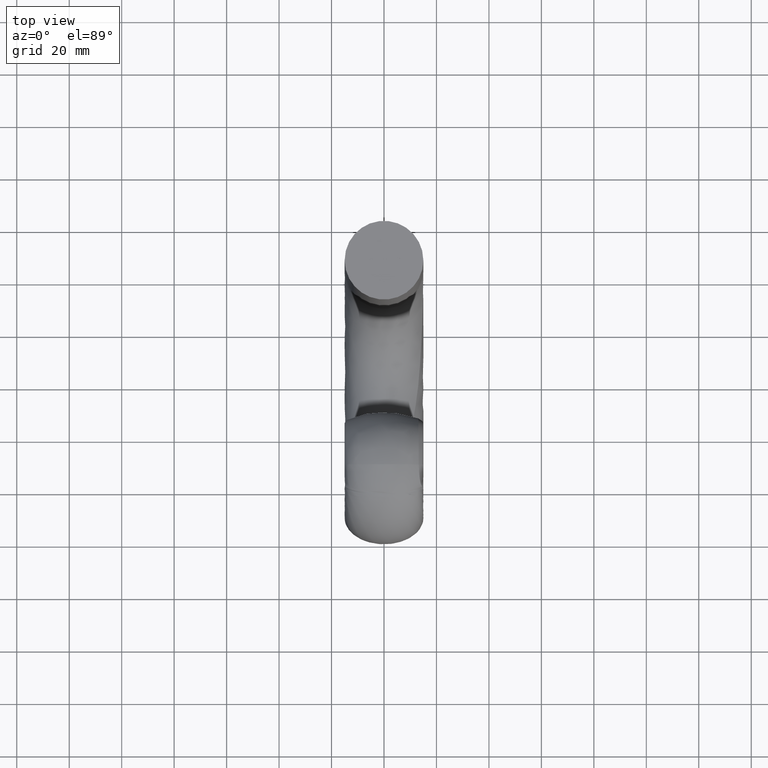
[diagram: clean part render]
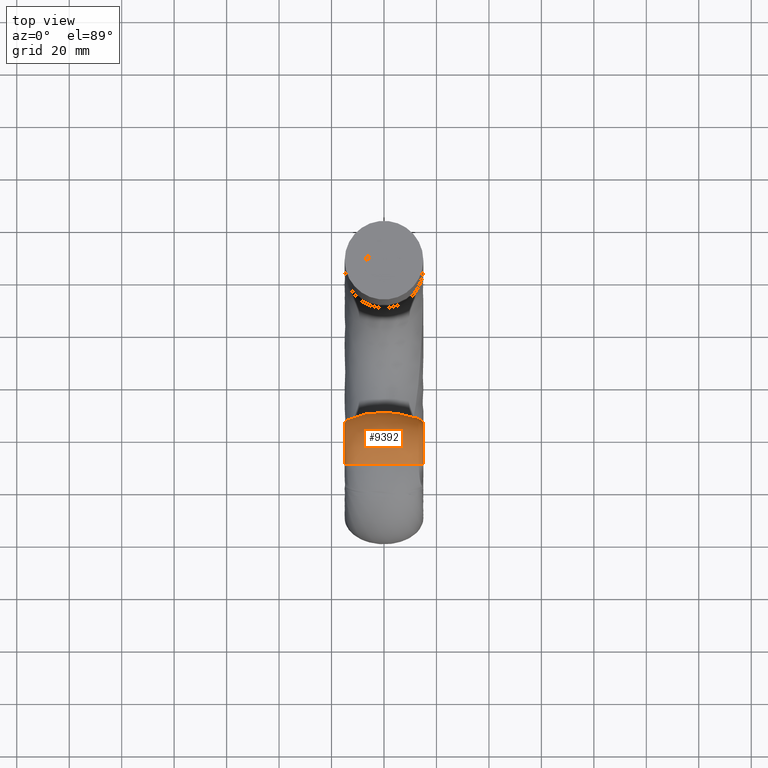
[diagram: same view with one face highlighted and labeled with its STEP entity id]
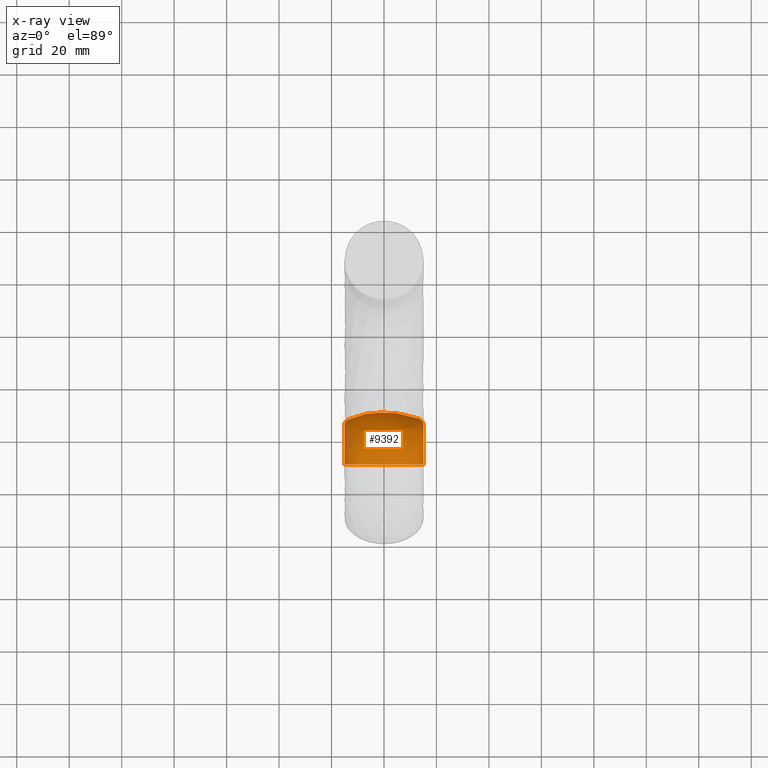
[diagram: x-ray of the same camera — body ghosted, the highlighted face saturated]
A machine part, top view. The second image highlights one B-rep face of the part: STEP entity #9392.
The next image is the same camera in x-ray: the body ghosted, the highlighted face saturated — about 0% of this face is hidden behind the body in this view.
In plain terms, the highlighted face is a freeform B-spline surface patch.
Its self-contained STEP definition (entity closure, byte-faithful):
#10 = CARTESIAN_POINT ( 'NONE',  ( -10.20475495683882300, 48.61186163591647600, 4.715058631657980100 ) ) ;
#29 = CARTESIAN_POINT ( 'NONE',  ( 0.6301788391058069600, 44.91452162712401700, -1.920545361617025800 ) ) ;
#60 = CARTESIAN_POINT ( 'NONE',  ( -14.87437876325838800, 47.61276404176801000, 6.947146500175112000 ) ) ;
#76 = CARTESIAN_POINT ( 'NONE',  ( 0.5484086856474481600, 37.81622348324568600, 4.620763202125711900 ) ) ;
#99 = CARTESIAN_POINT ( 'NONE',  ( -10.02426949254982900, 33.49164225234307700, 28.82672913196165600 ) ) ;
#117 = CARTESIAN_POINT ( 'NONE',  ( 1.571332605376105000, 49.20377971486300300, 15.88885075193090300 ) ) ;
#144 = CARTESIAN_POINT ( 'NONE',  ( -10.25336206421495300, 43.65897647796154500, -2.031322771746487500 ) ) ;
#160 = CARTESIAN_POINT ( 'NONE',  ( 4.092090562060056100, 30.00000000000000000, 29.72518760343814000 ) ) ;
#184 = CARTESIAN_POINT ( 'NONE',  ( -10.31187520880470700, 37.69147332073894300, 3.833664387435294700 ) ) ;
#201 = CARTESIAN_POINT ( 'NONE',  ( 1.460864932896268800, 46.28525903466994200, -0.7848184860967504200 ) ) ;
#229 = CARTESIAN_POINT ( 'NONE',  ( -2.253447770903444600, 40.21337682134622300, -2.195633180431369800 ) ) ;
#245 = CARTESIAN_POINT ( 'NONE',  ( 2.569683391173860800, 37.83449588973820000, 4.611663517668591600 ) ) ;
#267 = CARTESIAN_POINT ( 'NONE',  ( -2.222985271447723400, 44.90060540927837700, -1.897213870499181400 ) ) ;
#280 = CARTESIAN_POINT ( 'NONE',  ( 2.698957818208473000, 49.07488817201944200, 4.556241795514429400 ) ) ;
#308 = CARTESIAN_POINT ( 'NONE',  ( -2.101995123281608100, 49.18360270625536400, 15.88266140990148000 ) ) ;
#323 = CARTESIAN_POINT ( 'NONE',  ( 15.14559541003366600, 46.49934550506608100, 15.07505424886092600 ) ) ;
#354 = CARTESIAN_POINT ( 'NONE',  ( -3.413109108577406600, 42.59275050193510700, -2.591325096236855700 ) ) ;
#362 = FACE_OUTER_BOUND ( 'NONE', #909, .T. ) ;
#373 = CARTESIAN_POINT ( 'NONE',  ( 10.56545515286601700, 37.97759773731758100, 0.4591921068384851000 ) ) ;
#402 = CARTESIAN_POINT ( 'NONE',  ( -2.303950241531829600, 37.83048133527662300, 4.613657964165435400 ) ) ;
#417 = CARTESIAN_POINT ( 'NONE',  ( 10.59737523544110100, 42.56990266401594900, -2.208736045459792000 ) ) ;
#442 = CARTESIAN_POINT ( 'NONE',  ( 0.03949350219729252900, 37.18253838071664300, 28.77845359242518000 ) ) ;
#456 = CARTESIAN_POINT ( 'NONE',  ( 10.76784753307926200, 42.66509403043251300, 24.20444206620306500 ) ) ;
#488 = CARTESIAN_POINT ( 'NONE',  ( -0.2591119291196993800, 37.29852599562904900, 1.495299882231584600 ) ) ;
#504 = CARTESIAN_POINT ( 'NONE',  ( 15.21219394346221100, 30.00000000000000000, 25.55994367122105300 ) ) ;
#529 = CARTESIAN_POINT ( 'NONE',  ( -0.9557794600715453500, 49.67446382191607800, 6.523022335543671200 ) ) ;
#548 = CARTESIAN_POINT ( 'NONE',  ( 14.92234691596990700, 39.89282263086229100, 3.128228697229158000 ) ) ;
#569 = CARTESIAN_POINT ( 'NONE',  ( -0.7350354216119844300, 30.00000000000000000, 29.99959115891636000 ) ) ;
#584 = CARTESIAN_POINT ( 'NONE',  ( 7.983142848990078200, 41.69695819953913900, 9.474086058327406700 ) ) ;
#607 = CARTESIAN_POINT ( 'NONE',  ( 0.2939947657860801400, 50.06074846182422500, 8.923584158630305300 ) ) ;
#621 = CARTESIAN_POINT ( 'NONE',  ( 14.86733544571673900, 42.96647745176492400, 3.340674559040648400 ) ) ;
#667 = CARTESIAN_POINT ( 'NONE',  ( 7.821707080131844200, 32.25842792823400600, 16.02504688869039700 ) ) ;
#694 = CARTESIAN_POINT ( 'NONE',  ( 0.1319451898328895000, 38.00004959377621800, 4.979920021220603800 ) ) ;
#711 = CARTESIAN_POINT ( 'NONE',  ( 14.92659714024734200, 40.00060253431691800, 3.764205780821033200 ) ) ;
#735 = CARTESIAN_POINT ( 'NONE',  ( 0.1855188649795549100, 40.20351540438738200, -2.217627991391552600 ) ) ;
#746 = CARTESIAN_POINT ( 'NONE',  ( -15.25525509941292900, 31.64354577525931600, 19.09105462956653600 ) ) ;
#775 = CARTESIAN_POINT ( 'NONE',  ( 0.2465857267815631500, 47.90270251934892800, 1.785411504451394100 ) ) ;
#791 = CARTESIAN_POINT ( 'NONE',  ( 8.061579285278286400, 41.92343484369903500, 3.105785888294114700 ) ) ;
#833 = CARTESIAN_POINT ( 'NONE',  ( -15.26732151550499800, 30.00000000000000000, 18.61264280544154600 ) ) ;
#880 = CARTESIAN_POINT ( 'NONE',  ( -15.13406806285026100, 43.36071140242940200, 4.287761067451305600 ) ) ;
#897 = CARTESIAN_POINT ( 'NONE',  ( 0.2369815458401221000, 47.10871376364363500, 0.4955899096737880800 ) ) ;
#909 = EDGE_LOOP ( 'NONE', ( #11587 ) ) ;
#930 = CARTESIAN_POINT ( 'NONE',  ( -8.534342098070252900, 42.16303461278578600, 6.049352232490503100 ) ) ;
#946 = CARTESIAN_POINT ( 'NONE',  ( 0.5687165354810903600, 37.29958836904587800, 1.495478354353123400 ) ) ;
#977 = CARTESIAN_POINT ( 'NONE',  ( -10.16209355091190300, 49.31730572808819300, 12.28415590582793900 ) ) ;
#995 = CARTESIAN_POINT ( 'NONE',  ( 0.1700654957320078000, 38.28582767938588900, -0.7077813347016318500 ) ) ;
#1020 = CARTESIAN_POINT ( 'NONE',  ( 15.00000000000000000, 30.00000000000000000, 22.50000000000000000 ) ) ;
#1022 = CARTESIAN_POINT ( 'NONE',  ( -14.78220159219371000, 32.97194478463569600, 26.08795853039088900 ) ) ;
#1038 = CARTESIAN_POINT ( 'NONE',  ( 0.3383827632599184000, 49.22297965337558900, 15.89459275940328600 ) ) ;
#1062 = CARTESIAN_POINT ( 'NONE',  ( -10.06380425071840400, 39.98678284184055100, 26.41155698001465500 ) ) ;
#1076 = CARTESIAN_POINT ( 'NONE',  ( 1.731639280285626600, 30.00000000000000000, 29.95850475426512500 ) ) ;
#1102 = CARTESIAN_POINT ( 'NONE',  ( -14.94116164639853700, 38.70462978605527800, 4.551754309682070100 ) ) ;
#1119 = CARTESIAN_POINT ( 'NONE',  ( 4.069680444368843900, 33.62742840686787100, 29.54634708975118000 ) ) ;
#1146 = CARTESIAN_POINT ( 'NONE',  ( -10.01084548729263600, 31.15505121504428800, 28.92297089621201400 ) ) ;
#1162 = CARTESIAN_POINT ( 'NONE',  ( 2.612428895079968800, 39.17230057221148300, -1.564610658032340200 ) ) ;
#1186 = CARTESIAN_POINT ( 'NONE',  ( -3.121309092824350100, 30.00000000000000000, 29.84533828925969000 ) ) ;
#1201 = CARTESIAN_POINT ( 'NONE',  ( 1.617083913432538500, 45.85479283991421800, 22.32531366360774100 ) ) ;
#1223 = CARTESIAN_POINT ( 'NONE',  ( -2.276203024440523100, 37.68811430143613000, 0.3296453138036072300 ) ) ;
#1241 = CARTESIAN_POINT ( 'NONE',  ( 2.928959469766031700, 30.00000000000000000, 29.86484269600380500 ) ) ;
#1266 = CARTESIAN_POINT ( 'NONE',  ( -2.010844505691113900, 40.43069859133959200, 27.13552629687998100 ) ) ;
#1284 = CARTESIAN_POINT ( 'NONE',  ( 1.426660791040181000, 41.36851737404239800, -2.572120459135390600 ) ) ;
#1314 = CARTESIAN_POINT ( 'NONE',  ( -10.27288972611845500, 40.35208993279820800, -1.886662303279510000 ) ) ;
#1331 = CARTESIAN_POINT ( 'NONE',  ( 3.936660282286647200, 49.06585548341458700, 15.84739993705147200 ) ) ;
#1356 = CARTESIAN_POINT ( 'NONE',  ( -10.28599877770684800, 38.54509906259418300, -0.5105173808271728000 ) ) ;
#1372 = CARTESIAN_POINT ( 'NONE',  ( 3.857786589916123400, 48.52495915722813900, 3.281065632119788000 ) ) ;
#1399 = CARTESIAN_POINT ( 'NONE',  ( -0.1769030832076855800, 47.10986508557057600, 0.4947983436508298600 ) ) ;
#1417 = CARTESIAN_POINT ( 'NONE',  ( 10.59094579465375800, 41.44714387547553300, -2.161761891801161200 ) ) ;
#1451 = CARTESIAN_POINT ( 'NONE',  ( -0.2438441744031930600, 38.28529314779083100, -0.7081848646436352800 ) ) ;
#1470 = CARTESIAN_POINT ( 'NONE',  ( 10.55259150303100500, 37.53511255016438500, 2.697796992005752100 ) ) ;
#1499 = CARTESIAN_POINT ( 'NONE',  ( -0.9775864360697442700, 48.62687867984620000, 3.236685837942827200 ) ) ;
#1514 = CARTESIAN_POINT ( 'NONE',  ( 10.84329188194425300, 30.00000000000000000, 28.62329784408432300 ) ) ;
#1539 = CARTESIAN_POINT ( 'NONE',  ( -0.05244310835518905400, 47.84688458611536500, 19.27546928377310600 ) ) ;
#1554 = CARTESIAN_POINT ( 'NONE',  ( 15.07746441838664700, 39.95828910072580000, -0.5738705923053772900 ) ) ;
#1582 = CARTESIAN_POINT ( 'NONE',  ( -1.102324201736263300, 38.00199378065581600, 4.978738560021740900 ) ) ;
#1599 = CARTESIAN_POINT ( 'NONE',  ( 7.998643915557332600, 41.99073142169224600, 8.104201164733728600 ) ) ;
#1642 = CARTESIAN_POINT ( 'NONE',  ( 15.05767769560800300, 38.72718133959014600, 4.538049976135135400 ) ) ;
#1681 = CARTESIAN_POINT ( 'NONE',  ( 15.08076587956959700, 40.76419235593477500, -0.9695151563898669600 ) ) ;
#1704 = CARTESIAN_POINT ( 'NONE',  ( 0.4994208442570384200, 30.00000000000000000, 29.99584182764553100 ) ) ;
#1718 = CARTESIAN_POINT ( 'NONE',  ( 15.06755203648122800, 38.36033592139042300, 1.678223454956944100 ) ) ;
#1748 = CARTESIAN_POINT ( 'NONE',  ( 0.4532409012672452000, 37.18048985580397000, 28.77319119350710300 ) ) ;
#1763 = CARTESIAN_POINT ( 'NONE',  ( -8.766005348132033200, 30.33906905619258500, 15.37126203670682000 ) ) ;
#1807 = CARTESIAN_POINT ( 'NONE',  ( -15.12383440712267200, 42.43917802002586400, 2.098503034385833300 ) ) ;
#1847 = CARTESIAN_POINT ( 'NONE',  ( 8.040711035116057600, 41.80122870538377800, 4.141001827694960700 ) ) ;
#1894 = CARTESIAN_POINT ( 'NONE',  ( -15.26332988991419600, 30.54369245400792500, 18.77090362336362600 ) ) ;
#1912 = CARTESIAN_POINT ( 'NONE',  ( 0.5839751658672086600, 38.28636221098095400, -0.7073778047596284100 ) ) ;
#1942 = CARTESIAN_POINT ( 'NONE',  ( 8.084864625043046300, 42.31924792928184300, 2.393633460964319100 ) ) ;
#1958 = CARTESIAN_POINT ( 'NONE',  ( 0.2786535542030801900, 49.67719292040088400, 6.522471189889007100 ) ) ;
#1974 =( BOUNDED_CURVE ( )  B_SPLINE_CURVE ( 3, ( #10666, #5651, #3714, #2821, #11752, #9706, #9752 ),
 .UNSPECIFIED., .T., .F. ) 
 B_SPLINE_CURVE_WITH_KNOTS ( ( 4, 3, 4 ),
 ( 0.0000000000000000000, 3.141592653589793100, 6.283185307179586200 ),
 .UNSPECIFIED. ) 
 CURVE ( )  GEOMETRIC_REPRESENTATION_ITEM ( )  RATIONAL_B_SPLINE_CURVE ( ( 1.000000000000000000, 0.3333333333333333700, 0.3333333333333333700, 1.000000000000000000, 0.3333333333333333700, 0.3333333333333333700, 1.000000000000000000 ) ) 
 REPRESENTATION_ITEM ( '' )  );
#1988 = CARTESIAN_POINT ( 'NONE',  ( -15.09709389703017400, 41.32810940451945200, 1.153341361735816600 ) ) ;
#2001 = CARTESIAN_POINT ( 'NONE',  ( 0.1625295975611675800, 37.66913995361491600, 0.3211347681532475400 ) ) ;
#2024 = CARTESIAN_POINT ( 'NONE',  ( 15.00000000000000000, 39.28187053825683300, 4.200971389435667700 ) ) ;
#2025 = CARTESIAN_POINT ( 'NONE',  ( -14.77482155437700100, 30.98313291753599300, 26.06882354629542700 ) ) ;
#2046 = CARTESIAN_POINT ( 'NONE',  ( 0.5994234801024078700, 40.20385280363927200, -2.216883283159091900 ) ) ;
#2074 = CARTESIAN_POINT ( 'NONE',  ( -14.89349418016151800, 45.67483425264697400, 1.480407859020948600 ) ) ;
#2091 = CARTESIAN_POINT ( 'NONE',  ( 0.7522138419585526800, 49.22006216715331600, 15.89372731526910500 ) ) ;
#2116 = CARTESIAN_POINT ( 'NONE',  ( -10.21225407656058900, 48.14861612765524500, 3.444742451989696100 ) ) ;
#2130 = CARTESIAN_POINT ( 'NONE',  ( 1.449694313208177700, 44.91001597959871100, -1.912958839877348900 ) ) ;
#2156 = CARTESIAN_POINT ( 'NONE',  ( -14.93774791318121100, 38.31027349530906900, 3.635430391221428100 ) ) ;
#2172 = CARTESIAN_POINT ( 'NONE',  ( 2.770596051682121500, 49.14925120789887100, 15.87247136940500900 ) ) ;
#2192 = CARTESIAN_POINT ( 'NONE',  ( -2.238208050164153500, 42.59514161339166800, -2.631025950259074700 ) ) ;
#2211 = CARTESIAN_POINT ( 'NONE',  ( 2.661385151857306800, 46.25758970655952900, -0.7640415432788514300 ) ) ;
#2239 = CARTESIAN_POINT ( 'NONE',  ( -3.387182028769647700, 46.23260972716525400, -0.7454670277257877700 ) ) ;
#2254 = CARTESIAN_POINT ( 'NONE',  ( 2.635184539176505000, 42.59448734498197100, -2.619496966294947400 ) ) ;
#2282 = CARTESIAN_POINT ( 'NONE',  ( -3.337252840981938200, 49.58684690048112700, 6.541031396476629600 ) ) ;
#2300 = CARTESIAN_POINT ( 'NONE',  ( 1.548657329773139600, 49.95245427251263900, 12.35759892529964100 ) ) ;
#2323 = CARTESIAN_POINT ( 'NONE',  ( -3.349967696468257600, 49.04384327173013200, 4.566856642922169300 ) ) ;
#2339 = CARTESIAN_POINT ( 'NONE',  ( 3.811008829382094300, 43.75859722391623300, -2.345443662110591600 ) ) ;
#2369 = CARTESIAN_POINT ( 'NONE',  ( -1.988030014081962700, 37.16310677869005700, 28.72790897828780700 ) ) ;
#2389 = CARTESIAN_POINT ( 'NONE',  ( 3.866302272359119800, 49.01413892275898100, 4.577097089344463600 ) ) ;
#2420 = CARTESIAN_POINT ( 'NONE',  ( -0.1863938172719859000, 46.29502834590471100, -0.7921856651282253000 ) ) ;
#2435 = CARTESIAN_POINT ( 'NONE',  ( 10.58458195729019900, 40.36909214800665100, -1.849134983449163300 ) ) ;
#2458 = CARTESIAN_POINT ( 'NONE',  ( -2.291487357175929300, 37.26039866607587900, 2.718863783620906200 ) ) ;
#2473 = CARTESIAN_POINT ( 'NONE',  ( 10.80552207312687000, 36.73852302294663000, 27.62951805614558200 ) ) ;
#2500 = CARTESIAN_POINT ( 'NONE',  ( -1.006894541782318700, 46.29147390143759100, -0.7895416348223014400 ) ) ;
#2515 = CARTESIAN_POINT ( 'NONE',  ( 15.19327661685022300, 35.74328984435374000, 25.05216874241130800 ) ) ;
#2545 = CARTESIAN_POINT ( 'NONE',  ( -1.064257782343545100, 38.28805453873165700, -0.7060787388615481500 ) ) ;
#2564 = CARTESIAN_POINT ( 'NONE',  ( 15.11493300951141300, 47.11668611112964600, 5.228332248939325100 ) ) ;
#2602 = CARTESIAN_POINT ( 'NONE',  ( 15.10684919008154000, 46.20216721259087200, 2.722382458609419000 ) ) ;
#2625 = CARTESIAN_POINT ( 'NONE',  ( 0.1625295975611675800, 37.66913995361491600, 0.3211347681532475400 ) ) ;
#2642 = CARTESIAN_POINT ( 'NONE',  ( 14.75636742222299500, 35.16037500618585900, 18.54905075572122200 ) ) ;
#2688 = CARTESIAN_POINT ( 'NONE',  ( 15.07412590324150000, 39.25750373297136500, 0.03111548197512139700 ) ) ;
#2718 = CARTESIAN_POINT ( 'NONE',  ( 0.2162855950875180700, 44.91511093926396100, -1.921543351052939600 ) ) ;
#2733 = CARTESIAN_POINT ( 'NONE',  ( 14.72054285042841900, 30.51504661657900600, 18.28892795769221600 ) ) ;
#2762 = CARTESIAN_POINT ( 'NONE',  ( 0.1548023031806954900, 37.29905718233746400, 1.495389118292354000 ) ) ;
#2777 = CARTESIAN_POINT ( 'NONE',  ( -8.555951023963469700, 42.06905594012829400, 8.087944254053191200 ) ) ;
#2818 = CARTESIAN_POINT ( 'NONE',  ( -8.514674126796286700, 41.84728158246111500, 4.109339186776628200 ) ) ;
#2821 = CARTESIAN_POINT ( 'NONE',  ( -15.00000000000000000, 39.28187053825683300, 4.200971389435667700 ) ) ;
#2863 = CARTESIAN_POINT ( 'NONE',  ( -8.440769108158793400, 41.34154846085770900, 1.965585777609751800 ) ) ;
#2910 = CARTESIAN_POINT ( 'NONE',  ( 8.077070785579136800, 42.27763822868610100, 2.661963984913215500 ) ) ;
#2923 = CARTESIAN_POINT ( 'NONE',  ( 0.1931743443035488800, 41.36694374317445300, -2.580294981362882800 ) ) ;
#2949 = CARTESIAN_POINT ( 'NONE',  ( 8.108127906972043800, 41.70694110358002900, 1.894077719152842000 ) ) ;
#2967 = CARTESIAN_POINT ( 'NONE',  ( 0.5534416410795052200, 37.45182611553124700, 3.910386142402472800 ) ) ;
#2997 = CARTESIAN_POINT ( 'NONE',  ( -14.88909820793189600, 46.29933403808019000, 2.668726651410458000 ) ) ;
#3016 = CARTESIAN_POINT ( 'NONE',  ( 0.8210855047708182100, 43.38269034167791500, 25.00224821676870200 ) ) ;
#3045 = CARTESIAN_POINT ( 'NONE',  ( -15.10954146272273800, 42.35200489623122900, 1.419560632323420900 ) ) ;
#3058 = CARTESIAN_POINT ( 'NONE',  ( 0.5917378141497439100, 39.15298999962930500, -1.588933476782120200 ) ) ;
#3080 = CARTESIAN_POINT ( 'NONE',  ( -14.90294428953149000, 44.10437956507660600, -0.5594801754596651100 ) ) ;
#3096 = CARTESIAN_POINT ( 'NONE',  ( 0.7078516465248888600, 50.05850353832573800, 8.923741777986499800 ) ) ;
#3117 = CARTESIAN_POINT ( 'NONE',  ( -10.04402718262154100, 36.84175224242756000, 27.89470073932992700 ) ) ;
#3133 = CARTESIAN_POINT ( 'NONE',  ( 1.373178880024203300, 37.45612203429971700, 3.909005264466364900 ) ) ;
#3158 = CARTESIAN_POINT ( 'NONE',  ( -3.405695259998855500, 43.76414680836533200, -2.363128444818279200 ) ) ;
#3174 = CARTESIAN_POINT ( 'NONE',  ( 1.388411340002999600, 37.30482109596314900, 1.496375657705524300 ) ) ;
#3201 = CARTESIAN_POINT ( 'NONE',  ( -10.29238743600137300, 37.94982713611474900, 0.4468801325235153800 ) ) ;
#3215 = CARTESIAN_POINT ( 'NONE',  ( 2.815807221884635900, 45.80162534205516800, 22.28438074401986300 ) ) ;
#3240 = CARTESIAN_POINT ( 'NONE',  ( -3.358557265002806600, 48.55168945685876000, 3.269389342216088200 ) ) ;
#3255 = CARTESIAN_POINT ( 'NONE',  ( 4.084677192706093000, 31.19996989554908500, 29.66602634414972400 ) ) ;
#3278 = CARTESIAN_POINT ( 'NONE',  ( -10.31613551586082000, 38.02745278205693300, 4.515533560460582400 ) ) ;
#3293 = CARTESIAN_POINT ( 'NONE',  ( 2.642678418704541800, 43.77292086049448000, -2.390682669845400900 ) ) ;
#3325 = CARTESIAN_POINT ( 'NONE',  ( -10.29893565257245100, 37.58410967287570500, 1.544578164794093300 ) ) ;
#3342 = CARTESIAN_POINT ( 'NONE',  ( 10.73008354855382200, 47.01508237785789400, 18.84801756169646200 ) ) ;
#3369 = CARTESIAN_POINT ( 'NONE',  ( -0.9878215509360743800, 47.90007219313529400, 1.786855675446337200 ) ) ;
#3382 = CARTESIAN_POINT ( 'NONE',  ( 3.773756672222627000, 38.33839182491419700, -0.6678300189352258700 ) ) ;
#3409 = CARTESIAN_POINT ( 'NONE',  ( -0.2129870659980282500, 42.59678814313843300, -2.658208252915048600 ) ) ;
#3424 = CARTESIAN_POINT ( 'NONE',  ( 10.82429430271531200, 33.43143294520323400, 28.51614789819145600 ) ) ;
#3450 = CARTESIAN_POINT ( 'NONE',  ( -1.094757526073193700, 37.45373756939855500, 3.909782763090683800 ) ) ;
#3468 = CARTESIAN_POINT ( 'NONE',  ( 10.65104201619332600, 48.52601286999803400, 4.744654624105478100 ) ) ;
#3495 = CARTESIAN_POINT ( 'NONE',  ( -0.9687936813018740400, 49.12427313465486400, 4.539270322017933300 ) ) ;
#3510 = CARTESIAN_POINT ( 'NONE',  ( 15.16477461432299000, 43.26050387686533600, 20.32602190279493100 ) ) ;
#3531 = CARTESIAN_POINT ( 'NONE',  ( -0.07544831543871581600, 49.22589713959786900, 15.89545820353746600 ) ) ;
#3547 = CARTESIAN_POINT ( 'NONE',  ( 14.89214090961937500, 42.10944042857993000, 1.297486790948606300 ) ) ;
#3573 = CARTESIAN_POINT ( 'NONE',  ( 0.2786535542030801900, 49.67719292040088400, 6.522471189889007100 ) ) ;
#3587 = CARTESIAN_POINT ( 'NONE',  ( 14.80943006297734000, 41.84239693263082700, 13.67298266799904600 ) ) ;
#3633 = CARTESIAN_POINT ( 'NONE',  ( 15.08404938589512400, 41.63811035429360900, -1.164441635381532300 ) ) ;
#3675 = CARTESIAN_POINT ( 'NONE',  ( 15.06095589087143300, 38.33925757128612600, 3.625979600317189400 ) ) ;
#3697 = CARTESIAN_POINT ( 'NONE',  ( 0.1395232683871604800, 37.45142619686674100, 3.910516543236366000 ) ) ;
#3711 = CARTESIAN_POINT ( 'NONE',  ( -8.448258898436051800, 41.68555983977779500, 1.877936521472701100 ) ) ;
#3714 = CARTESIAN_POINT ( 'NONE',  ( -14.99999999999999600, 36.71812946174313900, 5.758928928201233300 ) ) ;
#3751 = CARTESIAN_POINT ( 'NONE',  ( -8.412881371470845700, 40.56202855428547600, 3.253008996681118900 ) ) ;
#3795 = CARTESIAN_POINT ( 'NONE',  ( 8.123482342827227100, 41.04142524181425200, 2.140364320347975600 ) ) ;
#3836 = CARTESIAN_POINT ( 'NONE',  ( 8.100313079762406300, 41.98721338531358100, 1.984007949326806400 ) ) ;
#3882 = CARTESIAN_POINT ( 'NONE',  ( -8.682977525713818400, 35.38921147984331100, 16.10862241999848300 ) ) ;
#3900 = CARTESIAN_POINT ( 'NONE',  ( 0.1395232683871604800, 37.45142619686674100, 3.910516543236366000 ) ) ;
#3927 = CARTESIAN_POINT ( 'NONE',  ( -14.86731549034658300, 47.81918139733493000, 9.070711024592332800 ) ) ;
#3943 = CARTESIAN_POINT ( 'NONE',  ( 0.4073017141948719300, 43.38571789726487500, 25.00559356435621100 ) ) ;
#3968 = CARTESIAN_POINT ( 'NONE',  ( -10.19365010213111400, 49.11495722251265800, 6.638075536478885000 ) ) ;
#3985 = CARTESIAN_POINT ( 'NONE',  ( 0.9131276059257343900, 30.00000000000000000, 29.98895088114018400 ) ) ;
#4007 = CARTESIAN_POINT ( 'NONE',  ( -14.90994595883780200, 42.50995452863052300, -1.212880170391433400 ) ) ;
#4021 = CARTESIAN_POINT ( 'NONE',  ( 0.4917306376224538900, 31.21584222991661400, 29.93037426086856100 ) ) ;
#4047 = CARTESIAN_POINT ( 'NONE',  ( -15.11363359665695000, 42.49683141637153500, 1.636817000768246300 ) ) ;
#4066 = CARTESIAN_POINT ( 'NONE',  ( 0.5458654326610137300, 38.00036075729853700, 4.979730930535964700 ) ) ;
#4092 = CARTESIAN_POINT ( 'NONE',  ( -10.23722650262988400, 45.91906892902061100, -0.5105535136006712500 ) ) ;
#4107 = CARTESIAN_POINT ( 'NONE',  ( 1.511837963727003400, 49.66278881886646700, 6.525445580340603500 ) ) ;
#4135 = CARTESIAN_POINT ( 'NONE',  ( -2.124568222439534800, 49.93142300766822200, 12.35507488923385500 ) ) ;
#4153 = CARTESIAN_POINT ( 'NONE',  ( 1.470318213395606100, 47.09936174084655400, 0.5020156177273047400 ) ) ;
#4174 = CARTESIAN_POINT ( 'NONE',  ( -10.31828833417797700, 38.19722991994595400, 4.860095683861957600 ) ) ;
#4189 = CARTESIAN_POINT ( 'NONE',  ( 2.838405160922120400, 43.31929339140037900, 24.93182815381541000 ) ) ;
#4214 = CARTESIAN_POINT ( 'NONE',  ( -2.033629227224115000, 43.35494088477167200, 24.97121744082437500 ) ) ;
#4230 = CARTESIAN_POINT ( 'NONE',  ( 1.708507233099386200, 33.66885161773857500, 29.76378435612550900 ) ) ;
#4255 = CARTESIAN_POINT ( 'NONE',  ( -3.465574415757533000, 37.28722937916802500, 2.716817459605020100 ) ) ;
#4274 = CARTESIAN_POINT ( 'NONE',  ( 15.15521004578212000, 45.11173618874880000, 17.86916670490255400 ) ) ;
#4298 = CARTESIAN_POINT ( 'NONE',  ( -3.322272925495250100, 49.96346941512230400, 8.929898310546976200 ) ) ;
#4313 = CARTESIAN_POINT ( 'NONE',  ( 10.61014120739032900, 44.66195392199654200, -1.495947051001995200 ) ) ;
#4341 = CARTESIAN_POINT ( 'NONE',  ( -0.8042189587096710800, 40.45586300628617200, 27.17662456770172200 ) ) ;
#4356 = CARTESIAN_POINT ( 'NONE',  ( 3.981048524826869400, 45.72093175850977800, 22.22222698887462000 ) ) ;
#4369 = VERTEX_POINT ( 'NONE', #2024 ) ;
#4386 = CARTESIAN_POINT ( 'NONE',  ( -0.2360765566990303500, 39.15206205820633300, -1.590094519298905600 ) ) ;
#4402 = CARTESIAN_POINT ( 'NONE',  ( 3.803644913548064100, 42.59178162982178200, -2.574252422556487100 ) ) ;
#4430 = CARTESIAN_POINT ( 'NONE',  ( -1.025854966551623000, 43.78397005593961900, -2.425644200531354800 ) ) ;
#4445 = CARTESIAN_POINT ( 'NONE',  ( 10.78668743580971100, 39.85252321650275300, 26.19440841082384400 ) ) ;
#4471 = CARTESIAN_POINT ( 'NONE',  ( -0.006482076381074322100, 43.38874545285184300, 25.00893891194371900 ) ) ;
#4486 = CARTESIAN_POINT ( 'NONE',  ( 14.83486346553130100, 43.52429160938783100, 9.354015846407792300 ) ) ;
#4509 = CARTESIAN_POINT ( 'NONE',  ( 0.08571408258834249700, 30.00000000000000000, 30.00273277415087800 ) ) ;
#4526 = CARTESIAN_POINT ( 'NONE',  ( 14.71604579507714100, 30.00000000000000000, 18.11322196118450700 ) ) ;
#4569 = CARTESIAN_POINT ( 'NONE',  ( 15.10276405571985800, 45.59139228015239800, 1.537776548672534500 ) ) ;
#4608 = CARTESIAN_POINT ( 'NONE',  ( 14.91376415002826800, 40.21398105709013000, 1.997711287510784800 ) ) ;
#4631 = CARTESIAN_POINT ( 'NONE',  ( 0.2568297179409199100, 48.62958662832621600, 3.235515135496303900 ) ) ;
#4646 = CARTESIAN_POINT ( 'NONE',  ( 14.84362014743181700, 43.67225663597831400, 7.758246828932580100 ) ) ;
#4657 = CARTESIAN_POINT ( 'NONE',  ( -14.99999999999999600, 30.00000000000000400, 7.500000000000003600 ) ) ;
#4691 = CARTESIAN_POINT ( 'NONE',  ( -8.750730729446281900, 31.02498298572737700, 15.83509006040609000 ) ) ;
#4702 = CARTESIAN_POINT ( 'NONE',  ( -15.00000000000000700, 30.00000000000000400, 37.50000000000000000 ) ) ;
#4730 = CARTESIAN_POINT ( 'NONE',  ( -15.21927091713375400, 37.24349457453318000, 18.17123199305320500 ) ) ;
#4770 = CARTESIAN_POINT ( 'NONE',  ( -8.615004337232633700, 39.90599583973401100, 13.08926177170940100 ) ) ;
#4812 = CARTESIAN_POINT ( 'NONE',  ( 8.131242641457246700, 40.76713858081684100, 2.450654461933097200 ) ) ;
#4831 = CARTESIAN_POINT ( 'NONE',  ( 0.4761738660582968100, 33.67540940770933800, 29.79793776993861700 ) ) ;
#4860 = CARTESIAN_POINT ( 'NONE',  ( 8.020682662188416900, 42.10171259416653600, 6.076138825861047400 ) ) ;
#4876 = CARTESIAN_POINT ( 'NONE',  ( 0.2465857267815631500, 47.90270251934892800, 1.785411504451394100 ) ) ;
#4902 = CARTESIAN_POINT ( 'NONE',  ( -14.88440407583611200, 46.87089773254523100, 4.000707021067174000 ) ) ;
#4912 = ORIENTED_EDGE ( 'NONE', *, *, #11371, .T. ) ;
#4922 = CARTESIAN_POINT ( 'NONE',  ( 0.2568297179409199100, 48.62958662832621600, 3.235515135496303900 ) ) ;
#4950 = CARTESIAN_POINT ( 'NONE',  ( -14.80386073071822200, 38.68125353759668200, 24.28388081695315000 ) ) ;
#4966 = CARTESIAN_POINT ( 'NONE',  ( 0.1344890706041131900, 37.81588252556142700, 4.620932591248574400 ) ) ;
#4994 = CARTESIAN_POINT ( 'NONE',  ( -15.08045778080167500, 39.95276845555952100, 2.513036798218950100 ) ) ;
#5012 = CARTESIAN_POINT ( 'NONE',  ( 0.1778306287253567700, 39.15252602891781900, -1.589513998040512900 ) ) ;
#5038 = CARTESIAN_POINT ( 'NONE',  ( -14.85733057210442400, 47.55550995801248600, 12.08121679041093400 ) ) ;
#5052 = CARTESIAN_POINT ( 'NONE',  ( 2.883575887804840800, 37.13898673327795300, 28.66594766158822000 ) ) ;
#5076 = CARTESIAN_POINT ( 'NONE',  ( -14.89783029624896700, 44.93098458069577100, 0.2301811188507038000 ) ) ;
#5091 = CARTESIAN_POINT ( 'NONE',  ( 1.639956173822215900, 43.36766657058925000, 24.98557900848716400 ) ) ;
#5116 = CARTESIAN_POINT ( 'NONE',  ( -3.377926396812986900, 47.04452348771284400, 0.5396714962035167300 ) ) ;
#5134 = CARTESIAN_POINT ( 'NONE',  ( 1.685683947697548000, 37.16891495980355100, 28.74334026640673300 ) ) ;
#5161 = CARTESIAN_POINT ( 'NONE',  ( -1.949806440380170500, 31.21283270188709100, 29.88090145943093400 ) ) ;
#5178 = CARTESIAN_POINT ( 'NONE',  ( 2.921403095215726200, 31.20817887088775300, 29.80259921745986800 ) ) ;
#5204 = CARTESIAN_POINT ( 'NONE',  ( -2.192974717622288700, 47.87490960743478000, 1.800714123227493500 ) ) ;
#5220 = CARTESIAN_POINT ( 'NONE',  ( 1.411367064255164800, 39.15707426974282200, -1.583793257704898100 ) ) ;
#5246 = CARTESIAN_POINT ( 'NONE',  ( -1.942167953212517800, 30.00000000000000000, 29.94597909889238400 ) ) ;
#5264 = CARTESIAN_POINT ( 'NONE',  ( 15.20269359861081100, 32.88535034188041100, 25.64127328941783200 ) ) ;
#5293 = CARTESIAN_POINT ( 'NONE',  ( -3.420653924053400200, 41.37877862607392400, -2.518345124379064000 ) ) ;
#5308 = CARTESIAN_POINT ( 'NONE',  ( 3.796149011889835100, 41.38176546532329100, -2.503007693725007000 ) ) ;
#5317 = B_SPLINE_SURFACE_WITH_KNOTS ( 'NONE', 3, 3, ( 
 ( #10857, #4021, #4831, #10945, #11858, #3943, #11811, #7920, #1038, #6838, #8985, #1958, #10811, #4922, #4876, #897, #12856, #6927, #8818, #5831, #2923, #8009, #5012, #995, #2001, #11767, #7969, #3900, #4966, #9816 ),
 ( #3985, #11940, #8910, #5881, #12763, #3016, #9905, #7839, #2091, #7010, #3096, #10903, #8945, #12813, #9953, #11903, #9990, #29, #6014, #5973, #6972, #2046, #3058, #1912, #6883, #946, #7879, #2967, #76, #4066 ),
 ( #1076, #10980, #4230, #5134, #10069, #5091, #1201, #7170, #117, #2300, #8090, #4107, #11065, #11024, #7054, #4153, #201, #2130, #11985, #9026, #1284, #10150, #5220, #7129, #12063, #3174, #7214, #3133, #6223, #8209 ),
 ( #1241, #5178, #9107, #5052, #12150, #4189, #3215, #6147, #2172, #8133, #11147, #9194, #280, #11107, #10188, #10030, #2211, #9147, #3293, #2254, #10108, #12026, #1162, #6057, #6101, #12105, #7092, #6188, #245, #8171 ),
 ( #160, #3255, #1119, #8050, #9065, #8380, #4356, #9324, #1331, #8296, #8251, #7259, #2389, #1372, #9277, #8340, #7349, #6312, #2339, #4402, #5308, #6357, #9237, #3382, #11192, #12369, #9370, #7440, #5437, #12281 ),
 ( #1514, #11322, #3424, #2473, #4445, #456, #6401, #3342, #5353, #5396, #12194, #6450, #3468, #11278, #10328, #10234, #10282, #4313, #11238, #417, #1417, #2435, #12325, #7397, #373, #12235, #1470, #7299, #10370, #11367 ),
 ( #504, #8422, #5264, #2515, #9415, #6269, #3510, #4274, #323, #9536, #9575, #10496, #2564, #5481, #2602, #4569, #10411, #7649, #12574, #8631, #3633, #1681, #1554, #2688, #10539, #1718, #5601, #3675, #5557, #1642 ),
 ( #4526, #2733, #8544, #11486, #2642, #8592, #7606, #9616, #3587, #10589, #4486, #4646, #12489, #9497, #11443, #621, #6611, #12403, #11404, #7526, #3547, #6572, #10456, #6486, #7567, #4608, #8462, #548, #9454, #711 ),
 ( #6647, #11530, #7483, #667, #5524, #11575, #12447, #6527, #12529, #5649, #584, #1599, #8502, #4860, #9749, #1847, #11706, #791, #9704, #2910, #1942, #9797, #3836, #2949, #7692, #3795, #4812, #5770, #7773, #8759 ),
 ( #12701, #1763, #4691, #8670, #6866, #3882, #10796, #6774, #4770, #8714, #12796, #2777, #11793, #930, #8802, #2818, #12619, #5861, #7823, #7865, #10703, #9665, #6692, #3711, #2863, #8848, #10627, #11617, #3751, #5687 ),
 ( #833, #1894, #746, #10663, #10752, #4730, #6738, #11666, #5725, #11749, #12663, #5813, #12746, #6820, #880, #7730, #1807, #9976, #4047, #3045, #11008, #11844, #1988, #8969, #5998, #8073, #4994, #11886, #10886, #5909 ),
 ( #10965, #2025, #1022, #12841, #4950, #11925, #7902, #5958, #8930, #5038, #3927, #60, #9935, #4902, #2997, #2074, #5076, #3080, #9011, #4007, #8892, #6912, #10930, #6993, #9846, #7075, #12010, #2156, #11968, #1102 ),
 ( #6037, #1146, #99, #3117, #1062, #7995, #7038, #8033, #10839, #977, #9890, #3968, #10, #2116, #9050, #10013, #4092, #6084, #144, #6953, #7952, #1314, #8236, #1356, #3201, #3325, #10216, #184, #3278, #4174 ),
 ( #1186, #12088, #8154, #10174, #10051, #6208, #9129, #11049, #9090, #8193, #4298, #2282, #2323, #3240, #8119, #5116, #2239, #10133, #3158, #354, #5293, #8281, #9179, #7242, #7114, #9219, #4255, #7283, #11177, #11220 ),
 ( #5246, #5161, #10093, #2369, #1266, #4214, #7200, #12220, #308, #4135, #11129, #6297, #12048, #6131, #5204, #12133, #11089, #267, #12177, #2192, #6172, #229, #7155, #6253, #1223, #11263, #2458, #11353, #402, #10268 ),
 ( #569, #8368, #11430, #10395, #4341, #12389, #9263, #6470, #12431, #5338, #7422, #529, #3495, #1499, #3369, #10439, #2500, #8407, #4430, #6385, #9356, #8446, #7508, #2545, #9395, #8485, #7334, #3450, #7467, #1582 ),
 ( #4509, #5419, #9439, #442, #6511, #4471, #11389, #1539, #3531, #5464, #5505, #8322, #10354, #12268, #6338, #1399, #2420, #12353, #9305, #3409, #7380, #10309, #4386, #1451, #6429, #488, #11305, #5382, #12308, #6676 ),
 ( #1704, #6721, #10614, #1748, #10568, #6635, #8619, #12605, #9481, #5546, #607, #3573, #7553, #4631, #775, #8656, #11558, #2718, #5632, #5585, #11646, #735, #7675, #7719, #2625, #2762, #9647, #3697, #12555, #694 ) ),
 .UNSPECIFIED., .T., .F., .F.,
 ( 4, 1, 1, 1, 1, 2, 2, 2, 1, 1, 1, 1, 4 ),
 ( 4, 1, 1, 1, 1, 1, 1, 1, 1, 1, 1, 1, 1, 1, 1, 1, 1, 1, 1, 1, 1, 1, 1, 1, 1, 1, 1, 4 ),
 ( 0.0000000000000000000, 0.01249999999999995600, 0.02499999999999991100, 0.03750000000000008900, 0.05000000000000004400, 0.2500000000000000000, 0.5000000000000000000, 0.7500000000000000000, 0.9499999999999999600, 0.9625000000000000200, 0.9749999999999999800, 0.9875000000000000400, 1.000000000000000000 ),
 ( 0.0000000000000000000, 0.05806444310617846900, 0.1174604689216664200, 0.1782212332732325800, 0.2404073794255287600, 0.3040302441248057300, 0.3691343684725112400, 0.4357226474646457800, 0.5038286040233392900, 0.5724189596866272600, 0.6298030400608396500, 0.6407225466598270900, 0.6882403413838962300, 0.7109003958820204700, 0.7351852641264952100, 0.7785304974691709100, 0.7969674001257766000, 0.8147371084898644700, 0.8324076164904740100, 0.8498424309721518400, 0.8673229427805283500, 0.8848942442345013600, 0.9027292340649757400, 0.9212246033846113200, 0.9399934784492282000, 0.9592986186484822000, 0.9794327783999584600, 1.000000000000000000 ),
 .UNSPECIFIED. ) ;
#5338 = CARTESIAN_POINT ( 'NONE',  ( -0.9188402711759653400, 49.96798935911420600, 12.35931801261458900 ) ) ;
#5353 = CARTESIAN_POINT ( 'NONE',  ( 10.71114327041780700, 48.39970349743944000, 15.64705397011001700 ) ) ;
#5382 = CARTESIAN_POINT ( 'NONE',  ( -0.2743951043051843200, 37.45102627820224200, 3.910646944070258700 ) ) ;
#5396 = CARTESIAN_POINT ( 'NONE',  ( 10.69236277071061300, 49.18600842313414700, 12.26962676046673000 ) ) ;
#5419 = CARTESIAN_POINT ( 'NONE',  ( 0.07801690209697592600, 31.21623748160783400, 29.93702450097610400 ) ) ;
#5437 = CARTESIAN_POINT ( 'NONE',  ( 3.739266386859718200, 37.85752419249345700, 4.600193894804367500 ) ) ;
#5464 = CARTESIAN_POINT ( 'NONE',  ( -0.09822913453141168800, 49.97289356046803700, 12.35990557502262100 ) ) ;
#5474 = FACE_OUTER_BOUND ( 'NONE', #11632, .T. ) ;
#5481 = CARTESIAN_POINT ( 'NONE',  ( 15.11120115795760600, 46.75979001212322600, 4.049240930978908400 ) ) ;
#5505 = CARTESIAN_POINT ( 'NONE',  ( -0.1198621149527286200, 50.06299338532272000, 8.923426539274110800 ) ) ;
#5524 = CARTESIAN_POINT ( 'NONE',  ( 7.845062763724647500, 33.70267107858893500, 16.17324326037755000 ) ) ;
#5546 = CARTESIAN_POINT ( 'NONE',  ( 0.3156156424586850100, 49.97028804042712800, 12.35961725242964000 ) ) ;
#5557 = CARTESIAN_POINT ( 'NONE',  ( 15.05877815106452300, 38.59695943600047500, 4.231877603490829600 ) ) ;
#5585 = CARTESIAN_POINT ( 'NONE',  ( 0.2009120771378179200, 42.59673257586590700, -2.657229091787251200 ) ) ;
#5601 = CARTESIAN_POINT ( 'NONE',  ( 15.06422211588868300, 38.24089184915252600, 2.643805046587667900 ) ) ;
#5632 = CARTESIAN_POINT ( 'NONE',  ( 0.2085145333167287600, 43.78489736497180500, -2.428542504580484700 ) ) ;
#5649 = CARTESIAN_POINT ( 'NONE',  ( 7.961279897343302100, 40.93218182486401700, 11.31941894216523200 ) ) ;
#5651 = CARTESIAN_POINT ( 'NONE',  ( 15.00000000000000200, 36.71812946174313900, 5.758928928201233300 ) ) ;
#5687 = CARTESIAN_POINT ( 'NONE',  ( -8.410350046395406000, 40.55746821229096400, 3.425804571343505200 ) ) ;
#5725 = CARTESIAN_POINT ( 'NONE',  ( -15.18294711526215200, 42.05384153332718000, 13.73570566836123200 ) ) ;
#5770 = CARTESIAN_POINT ( 'NONE',  ( 8.138844185459756600, 40.58704996264195600, 2.905840184435044500 ) ) ;
#5813 = CARTESIAN_POINT ( 'NONE',  ( -15.15120630569799900, 43.81417072968445600, 7.728791368602185400 ) ) ;
#5831 = CARTESIAN_POINT ( 'NONE',  ( 0.2009120771378179200, 42.59673257586590700, -2.657229091787251200 ) ) ;
#5861 = CARTESIAN_POINT ( 'NONE',  ( -8.494150475453320600, 41.94700732929655400, 3.065866310857558600 ) ) ;
#5881 = CARTESIAN_POINT ( 'NONE',  ( 0.8669883003371977600, 37.17844133089128900, 28.76792879458902200 ) ) ;
#5909 = CARTESIAN_POINT ( 'NONE',  ( -15.07224220175919500, 39.97805098078205100, 3.777910114367967000 ) ) ;
#5958 = CARTESIAN_POINT ( 'NONE',  ( -14.83609440396173100, 45.33786345138169300, 17.98437151766513500 ) ) ;
#5973 = CARTESIAN_POINT ( 'NONE',  ( 0.6148112202736640800, 42.59667700859338200, -2.656249930659453400 ) ) ;
#5998 = CARTESIAN_POINT ( 'NONE',  ( -15.08882260953608400, 40.50735520509687100, 1.592096887226532200 ) ) ;
#6014 = CARTESIAN_POINT ( 'NONE',  ( 0.6224108126830594200, 43.78457908223123200, -2.427528237447806900 ) ) ;
#6037 = CARTESIAN_POINT ( 'NONE',  ( -10.00420957483060400, 30.00000000000000000, 28.97054625919204800 ) ) ;
#6057 = CARTESIAN_POINT ( 'NONE',  ( 2.604772069709780300, 38.30954647916408400, -0.6897597623923039700 ) ) ;
#6084 = CARTESIAN_POINT ( 'NONE',  ( -10.24675746358311000, 44.69165052556735400, -1.546237711312073300 ) ) ;
#6101 = CARTESIAN_POINT ( 'NONE',  ( 2.597340657974441600, 37.69460304721472000, 0.3325220708020900100 ) ) ;
#6131 = CARTESIAN_POINT ( 'NONE',  ( -2.182826517299606600, 48.59942029998286700, 3.248626762183721700 ) ) ;
#6147 = CARTESIAN_POINT ( 'NONE',  ( 2.793221959515954600, 47.76882064128245300, 19.23542098489902900 ) ) ;
#6172 = CARTESIAN_POINT ( 'NONE',  ( -2.245868949334510800, 41.37165895589508600, -2.555576599983020900 ) ) ;
#6188 = CARTESIAN_POINT ( 'NONE',  ( 2.574649541723354100, 37.47264665233371500, 3.903704301440614500 ) ) ;
#6208 = CARTESIAN_POINT ( 'NONE',  ( -3.211511881135623800, 43.29893966868999700, 24.90884830370601600 ) ) ;
#6223 = CARTESIAN_POINT ( 'NONE',  ( 1.368159664664490000, 37.81998289022654800, 4.618891450431900300 ) ) ;
#6253 = CARTESIAN_POINT ( 'NONE',  ( -2.268744468185721200, 38.30325271809374500, -0.6945110643979995900 ) ) ;
#6269 = CARTESIAN_POINT ( 'NONE',  ( 15.17431173120745100, 41.02620259221999500, 22.38134715271502300 ) ) ;
#6297 = CARTESIAN_POINT ( 'NONE',  ( -2.161202706247026500, 49.64259160494739100, 6.529570587559950600 ) ) ;
#6312 = CARTESIAN_POINT ( 'NONE',  ( 3.818535118388308300, 44.86811664553023600, -1.842507456115203100 ) ) ;
#6338 = CARTESIAN_POINT ( 'NONE',  ( -0.1672946133641191300, 47.90404321508528100, 1.784671168317327700 ) ) ;
#6348 = EDGE_CURVE ( 'NONE', #4369, #4369, #1974, .T. ) ;
#6357 = CARTESIAN_POINT ( 'NONE',  ( 3.788731844035365400, 40.23404569942450600, -2.149708976154877300 ) ) ;
#6385 = CARTESIAN_POINT ( 'NONE',  ( -1.033448927431385800, 42.59654202378860100, -2.654211465450724300 ) ) ;
#6401 = CARTESIAN_POINT ( 'NONE',  ( 10.74897009931979000, 45.07872344978325400, 21.72745918825887700 ) ) ;
#6429 = CARTESIAN_POINT ( 'NONE',  ( -0.2513823779687126600, 37.66858886189214700, 0.3208904440535870800 ) ) ;
#6450 = CARTESIAN_POINT ( 'NONE',  ( 10.66181892174452500, 49.01628403999014700, 6.658555983047383700 ) ) ;
#6470 = CARTESIAN_POINT ( 'NONE',  ( -0.8731002981281270600, 47.84255945132827700, 19.27321429358404000 ) ) ;
#6486 = CARTESIAN_POINT ( 'NONE',  ( 14.90517484366538200, 40.95154090929670300, 1.319511184774048200 ) ) ;
#6511 = CARTESIAN_POINT ( 'NONE',  ( 0.01649315661698508600, 40.45808934528924500, 27.18031614540347700 ) ) ;
#6527 = CARTESIAN_POINT ( 'NONE',  ( 7.914952377524060400, 38.40225899092229200, 14.41778082175137900 ) ) ;
#6572 = CARTESIAN_POINT ( 'NONE',  ( 14.89646271639860100, 41.73981939307173400, 1.202721202296431500 ) ) ;
#6611 = CARTESIAN_POINT ( 'NONE',  ( 14.87271872837410800, 42.36363395540407600, 2.155914699974232900 ) ) ;
#6635 = CARTESIAN_POINT ( 'NONE',  ( 0.4073017141948719300, 43.38571789726487500, 25.00559356435621100 ) ) ;
#6647 = CARTESIAN_POINT ( 'NONE',  ( 7.774714389116902600, 30.00000000000000000, 14.86633924224749800 ) ) ;
#6676 = CARTESIAN_POINT ( 'NONE',  ( -0.2819750529952347900, 37.99973843025389200, 4.980109111905243000 ) ) ;
#6692 = CARTESIAN_POINT ( 'NONE',  ( -8.455974337213128000, 41.96865455685383500, 1.960787098991110300 ) ) ;
#6721 = CARTESIAN_POINT ( 'NONE',  ( 0.4917306376224538900, 31.21584222991661400, 29.93037426086856100 ) ) ;
#6738 = CARTESIAN_POINT ( 'NONE',  ( -15.20719790260954500, 39.04495632552806900, 17.07499205279033900 ) ) ;
#6774 = CARTESIAN_POINT ( 'NONE',  ( -8.637698715463015400, 38.52706202132222300, 14.48136408713041900 ) ) ;
#6820 = CARTESIAN_POINT ( 'NONE',  ( -15.13955079322277100, 43.64357928057088300, 5.405058822771419400 ) ) ;
#6838 = CARTESIAN_POINT ( 'NONE',  ( 0.3156156424586850100, 49.97028804042712800, 12.35961725242964000 ) ) ;
#6866 = CARTESIAN_POINT ( 'NONE',  ( -8.705581279099844100, 33.80924330248161900, 16.34561083458722300 ) ) ;
#6883 = CARTESIAN_POINT ( 'NONE',  ( 0.5764415730910478200, 37.66969104533769300, 0.3213790922529079500 ) ) ;
#6912 = CARTESIAN_POINT ( 'NONE',  ( -14.91694084563981300, 40.73973936981819600, -1.023487831100453400 ) ) ;
#6927 = CARTESIAN_POINT ( 'NONE',  ( 0.2162855950875180700, 44.91511093926396100, -1.921543351052939600 ) ) ;
#6953 = CARTESIAN_POINT ( 'NONE',  ( -10.25982070372630300, 42.57270280871340900, -2.258077910107695100 ) ) ;
#6972 = CARTESIAN_POINT ( 'NONE',  ( 0.6070762927708779300, 41.36711504597931100, -2.579415340822806000 ) ) ;
#6993 = CARTESIAN_POINT ( 'NONE',  ( -14.92394718361829000, 39.21876359469314400, 0.001869678925861730000 ) ) ;
#7010 = CARTESIAN_POINT ( 'NONE',  ( 0.7294604194487815900, 49.96768252038621900, 12.35932892983665700 ) ) ;
#7038 = CARTESIAN_POINT ( 'NONE',  ( -10.10325636131600600, 45.23844026714913700, 21.84966116017913500 ) ) ;
#7054 = CARTESIAN_POINT ( 'NONE',  ( 1.479888090869816900, 47.89207846288427100, 1.791269836833102100 ) ) ;
#7075 = CARTESIAN_POINT ( 'NONE',  ( -14.93085169296750100, 38.32183820352643300, 1.671756077975690100 ) ) ;
#7092 = CARTESIAN_POINT ( 'NONE',  ( 2.582108108427859000, 37.26599201763360000, 2.718413534256379500 ) ) ;
#7114 = CARTESIAN_POINT ( 'NONE',  ( -3.450525191332356000, 37.71607439153513800, 0.3421719688201058100 ) ) ;
#7129 = CARTESIAN_POINT ( 'NONE',  ( 1.403626735847881800, 38.29124161635535700, -0.7036727421710822200 ) ) ;
#7155 = CARTESIAN_POINT ( 'NONE',  ( -2.261058386965487000, 39.16683761954643500, -1.571445917407777500 ) ) ;
#7170 = CARTESIAN_POINT ( 'NONE',  ( 1.594227377138779200, 47.82395639075912900, 19.26373661236715800 ) ) ;
#7200 = CARTESIAN_POINT ( 'NONE',  ( -2.056424222884171400, 45.83894400926306600, 22.31293387197127100 ) ) ;
#7214 = CARTESIAN_POINT ( 'NONE',  ( 1.380717539022537200, 37.24734316415520400, 2.719845168601272300 ) ) ;
#7242 = CARTESIAN_POINT ( 'NONE',  ( -3.443180898881363000, 38.32907172096485500, -0.6748659753518987400 ) ) ;
#7259 = CARTESIAN_POINT ( 'NONE',  ( 3.878903654855048200, 49.55270520238698900, 6.548117792250021600 ) ) ;
#7283 = CARTESIAN_POINT ( 'NONE',  ( -3.472940979763716700, 37.49187151570441800, 3.897577946614037000 ) ) ;
#7299 = CARTESIAN_POINT ( 'NONE',  ( 10.54628974572395700, 37.71162601272632700, 3.827093231664067600 ) ) ;
#7334 = CARTESIAN_POINT ( 'NONE',  ( -1.087206947119716500, 37.24451076467389800, 2.720073168942997100 ) ) ;
#7349 = CARTESIAN_POINT ( 'NONE',  ( 3.829389872377272100, 46.21443533320787400, -0.7316549270216908800 ) ) ;
#7380 = CARTESIAN_POINT ( 'NONE',  ( -0.2207276041637801800, 41.36677244036959400, -2.581174621902959700 ) ) ;
#7397 = CARTESIAN_POINT ( 'NONE',  ( 10.57172763776579100, 38.57203516622874400, -0.4901827094289131200 ) ) ;
#7422 = CARTESIAN_POINT ( 'NONE',  ( -0.9404487914391753700, 50.05812207292061800, 8.923727413556939300 ) ) ;
#7440 = CARTESIAN_POINT ( 'NONE',  ( 3.744148329306668600, 37.49884450581205200, 3.895304274976664000 ) ) ;
#7467 = CARTESIAN_POINT ( 'NONE',  ( -1.099784148794938200, 37.81794997277852100, 4.619901411841417400 ) ) ;
#7483 = CARTESIAN_POINT ( 'NONE',  ( 7.798382997329697200, 30.97719021299480200, 15.58855777120193900 ) ) ;
#7508 = CARTESIAN_POINT ( 'NONE',  ( -1.056502639159532900, 39.15430790254145400, -1.587254542930729900 ) ) ;
#7526 = CARTESIAN_POINT ( 'NONE',  ( 14.88776868062835300, 42.34797766221660000, 1.490525263485317400 ) ) ;
#7553 = CARTESIAN_POINT ( 'NONE',  ( 0.2656295551392585100, 49.12701155191224700, 4.538338529617769600 ) ) ;
#7567 = CARTESIAN_POINT ( 'NONE',  ( 14.90941756063455300, 40.54729553742048200, 1.609804258489682300 ) ) ;
#7606 = CARTESIAN_POINT ( 'NONE',  ( 14.78296501974410600, 38.81524783932467700, 16.89923830034382100 ) ) ;
#7649 = CARTESIAN_POINT ( 'NONE',  ( 15.09393831570581300, 44.06166921081247500, -0.4871509640433630000 ) ) ;
#7675 = CARTESIAN_POINT ( 'NONE',  ( 0.1778306287253567700, 39.15252602891781900, -1.589513998040512900 ) ) ;
#7692 = CARTESIAN_POINT ( 'NONE',  ( 8.115709913036472000, 41.36359212976841300, 1.975358741596166000 ) ) ;
#7719 = CARTESIAN_POINT ( 'NONE',  ( 0.1700654957320078000, 38.28582767938588900, -0.7077813347016318500 ) ) ;
#7730 = CARTESIAN_POINT ( 'NONE',  ( -15.12892279016462300, 43.04991942425950700, 3.283305869389062000 ) ) ;
#7773 = CARTESIAN_POINT ( 'NONE',  ( 8.143903230262608900, 40.57566686165563400, 3.246233431766608800 ) ) ;
#7823 = CARTESIAN_POINT ( 'NONE',  ( -8.486440120643358400, 42.11642941166798000, 2.837690998539184100 ) ) ;
#7839 = CARTESIAN_POINT ( 'NONE',  ( 0.7751894462941623100, 47.84064443459537600, 19.27229012050415200 ) ) ;
#7865 = CARTESIAN_POINT ( 'NONE',  ( -8.478894939854781000, 42.27986091958727100, 2.622797539801307900 ) ) ;
#7879 = CARTESIAN_POINT ( 'NONE',  ( 0.5610012019673494800, 37.24246373610996800, 2.720222088036272600 ) ) ;
#7902 = CARTESIAN_POINT ( 'NONE',  ( -14.82538830803066400, 43.49021236306872100, 20.50177565524144500 ) ) ;
#7920 = CARTESIAN_POINT ( 'NONE',  ( 0.3613731689694866200, 47.84376451035536300, 19.27387970213862900 ) ) ;
#7952 = CARTESIAN_POINT ( 'NONE',  ( -10.26639151071207800, 41.43851158853991000, -2.206088717320542800 ) ) ;
#7969 = CARTESIAN_POINT ( 'NONE',  ( 0.1470848284709416500, 37.24198869056940000, 2.720260327891313300 ) ) ;
#7995 = CARTESIAN_POINT ( 'NONE',  ( -10.08353556258792600, 42.81765854075156600, 24.37302074358005700 ) ) ;
#8009 = CARTESIAN_POINT ( 'NONE',  ( 0.1855188649795549100, 40.20351540438738200, -2.217627991391552600 ) ) ;
#8033 = CARTESIAN_POINT ( 'NONE',  ( -10.12293661859543400, 47.17230916257239000, 18.92811972223823600 ) ) ;
#8050 = CARTESIAN_POINT ( 'NONE',  ( 4.047562218384320500, 37.09406913075149200, 28.54972662271796200 ) ) ;
#8073 = CARTESIAN_POINT ( 'NONE',  ( -15.08463957942045900, 40.17548333922614700, 1.991243910529531200 ) ) ;
#8090 = CARTESIAN_POINT ( 'NONE',  ( 1.527120976594231700, 50.04473699799678600, 8.924667199208222700 ) ) ;
#8119 = CARTESIAN_POINT ( 'NONE',  ( -3.368554633123309800, 47.83129215645134700, 1.824740406992511900 ) ) ;
#8133 = CARTESIAN_POINT ( 'NONE',  ( 2.748184240976246700, 49.90074470772655200, 12.35168007865915200 ) ) ;
#8154 = CARTESIAN_POINT ( 'NONE',  ( -3.144086787997933700, 33.64826130121945600, 29.65381064211675300 ) ) ;
#8171 = CARTESIAN_POINT ( 'NONE',  ( 2.567173896029986600, 38.01734554260941900, 4.969409461429036900 ) ) ;
#8193 = CARTESIAN_POINT ( 'NONE',  ( -3.301153918303519200, 49.86678228169856900, 12.34760082909769500 ) ) ;
#8209 = CARTESIAN_POINT ( 'NONE',  ( 1.365623354811268800, 38.00384905414849600, 4.977611130520029900 ) ) ;
#8236 = CARTESIAN_POINT ( 'NONE',  ( -10.27941303142537100, 39.36679026644065300, -1.319286464127802600 ) ) ;
#8251 = CARTESIAN_POINT ( 'NONE',  ( 3.893744208601179800, 49.92432688256140900, 8.932646564902306400 ) ) ;
#8281 = CARTESIAN_POINT ( 'NONE',  ( -3.428117587768758000, 40.22816279908888500, -2.162693724301997900 ) ) ;
#8296 = CARTESIAN_POINT ( 'NONE',  ( 3.914652174579985400, 49.82135238036450900, 12.34257363040188700 ) ) ;
#8322 = CARTESIAN_POINT ( 'NONE',  ( -0.1352113192849371300, 49.67915103336180500, 6.522064767121992000 ) ) ;
#8340 = CARTESIAN_POINT ( 'NONE',  ( 3.838574557373181800, 47.02444901477721800, 0.5534732577550909300 ) ) ;
#8368 = CARTESIAN_POINT ( 'NONE',  ( -0.7427291892891422200, 31.21602952168098000, 29.93374157955399900 ) ) ;
#8380 = CARTESIAN_POINT ( 'NONE',  ( 4.003230851369108800, 43.24615114684412700, 24.85051875396436200 ) ) ;
#8407 = CARTESIAN_POINT ( 'NONE',  ( -1.018092266320430600, 44.91352967935368000, -1.918909226775549200 ) ) ;
#8422 = CARTESIAN_POINT ( 'NONE',  ( 15.20905118596562400, 30.95448708010706800, 25.58684788062401700 ) ) ;
#8446 = CARTESIAN_POINT ( 'NONE',  ( -1.048823965271327400, 40.20470979128865000, -2.214949271618037200 ) ) ;
#8462 = CARTESIAN_POINT ( 'NONE',  ( 14.91810113167153600, 39.98719734638699900, 2.510265367520120100 ) ) ;
#8467 =( BOUNDED_CURVE ( )  B_SPLINE_CURVE ( 3, ( #8682, #10419, #4657, #12587, #4702, #12631, #9676 ),
 .UNSPECIFIED., .T., .F. ) 
 B_SPLINE_CURVE_WITH_KNOTS ( ( 4, 3, 4 ),
 ( 0.0000000000000000000, 3.141592653589793100, 6.283185307179586200 ),
 .UNSPECIFIED. ) 
 CURVE ( )  GEOMETRIC_REPRESENTATION_ITEM ( )  RATIONAL_B_SPLINE_CURVE ( ( 1.000000000000000000, 0.3333333333333333700, 0.3333333333333333700, 1.000000000000000000, 0.3333333333333333700, 0.3333333333333333700, 1.000000000000000000 ) ) 
 REPRESENTATION_ITEM ( '' )  );
#8485 = CARTESIAN_POINT ( 'NONE',  ( -1.079500379526458600, 37.30165396180666400, 1.495843598880308000 ) ) ;
#8502 = CARTESIAN_POINT ( 'NONE',  ( 8.011798073895873200, 42.11459622422388100, 6.944889565141516600 ) ) ;
#8544 = CARTESIAN_POINT ( 'NONE',  ( 14.72964009139156300, 31.55695133250403100, 18.64436938859347500 ) ) ;
#8592 = CARTESIAN_POINT ( 'NONE',  ( 14.76967905787064200, 37.02407270467797700, 17.92877817118843700 ) ) ;
#8619 = CARTESIAN_POINT ( 'NONE',  ( 0.3843280896858896100, 45.87426663632496100, 22.34027122091209000 ) ) ;
#8631 = CARTESIAN_POINT ( 'NONE',  ( 15.08736418451327700, 42.50592729461589400, -1.141915539229537300 ) ) ;
#8656 = CARTESIAN_POINT ( 'NONE',  ( 0.2369815458401221000, 47.10871376364363500, 0.4955899096737880800 ) ) ;
#8670 = CARTESIAN_POINT ( 'NONE',  ( -8.728188882666328800, 32.34036892474063800, 16.23554284541360500 ) ) ;
#8682 = CARTESIAN_POINT ( 'NONE',  ( 15.00000000000000000, 30.00000000000000000, 22.50000000000000000 ) ) ;
#8714 = CARTESIAN_POINT ( 'NONE',  ( -8.592511182260638600, 41.03640262650006300, 11.33095184588448800 ) ) ;
#8759 = CARTESIAN_POINT ( 'NONE',  ( 8.146459666729621000, 40.56991475318393700, 3.418240943957960200 ) ) ;
#8802 = CARTESIAN_POINT ( 'NONE',  ( -8.524192529695247000, 42.01350363658182400, 5.030032586034582000 ) ) ;
#8818 = CARTESIAN_POINT ( 'NONE',  ( 0.2085145333167287600, 43.78489736497180500, -2.428542504580484700 ) ) ;
#8848 = CARTESIAN_POINT ( 'NONE',  ( -8.433086949188629300, 41.02017777347732200, 2.136794877917191000 ) ) ;
#8892 = CARTESIAN_POINT ( 'NONE',  ( -14.91346407365000800, 41.62569519603312800, -1.228193519223119900 ) ) ;
#8910 = CARTESIAN_POINT ( 'NONE',  ( 0.8899017092276957400, 33.67421458839103100, 29.79177446270851000 ) ) ;
#8930 = CARTESIAN_POINT ( 'NONE',  ( -14.84678176820582800, 46.71079010576244900, 15.13777724922310400 ) ) ;
#8945 = CARTESIAN_POINT ( 'NONE',  ( 0.6795009365910156300, 49.12530793217563000, 4.538925845187417700 ) ) ;
#8969 = CARTESIAN_POINT ( 'NONE',  ( -15.09289824319439300, 40.91280077101848900, 1.290265381724788000 ) ) ;
#8985 = CARTESIAN_POINT ( 'NONE',  ( 0.2939947657860801400, 50.06074846182422500, 8.923584158630305300 ) ) ;
#9011 = CARTESIAN_POINT ( 'NONE',  ( -14.90648545535265200, 43.32876064306982000, -0.9891211903329717400 ) ) ;
#9026 = CARTESIAN_POINT ( 'NONE',  ( 1.434372824846111400, 42.59621071089236500, -2.648373339979248200 ) ) ;
#9050 = CARTESIAN_POINT ( 'NONE',  ( -10.22097854993736600, 47.46336538380852900, 2.027422018863110700 ) ) ;
#9065 = CARTESIAN_POINT ( 'NONE',  ( 4.025389236824572900, 40.33809432659042900, 26.98510097201379000 ) ) ;
#9090 = CARTESIAN_POINT ( 'NONE',  ( -3.278906966903530700, 49.11672483354095700, 15.86248983887867500 ) ) ;
#9107 = CARTESIAN_POINT ( 'NONE',  ( 2.906117056970192200, 33.65224358801968000, 29.67668484050258500 ) ) ;
#9129 = CARTESIAN_POINT ( 'NONE',  ( -3.233986018597562000, 45.77619503491030900, 22.26450983336336600 ) ) ;
#9147 = CARTESIAN_POINT ( 'NONE',  ( 2.650337859629335700, 44.89366664300351300, -1.885463195481168700 ) ) ;
#9179 = CARTESIAN_POINT ( 'NONE',  ( -3.435612248166676400, 39.18816788028154700, -1.544543026598327800 ) ) ;
#9194 = CARTESIAN_POINT ( 'NONE',  ( 2.711786380330850400, 49.61953610132773200, 6.534355950694310500 ) ) ;
#9219 = CARTESIAN_POINT ( 'NONE',  ( -3.458055079239331900, 37.34684378893833000, 1.503645655119098900 ) ) ;
#9237 = CARTESIAN_POINT ( 'NONE',  ( 3.781281999468165900, 39.19625768320538800, -1.534421045927645300 ) ) ;
#9263 = CARTESIAN_POINT ( 'NONE',  ( -0.8501498505432943900, 45.87369052094717100, 22.33977259113354900 ) ) ;
#9277 = CARTESIAN_POINT ( 'NONE',  ( 3.847871539676686000, 47.80791575785708100, 1.837648923141562500 ) ) ;
#9305 = CARTESIAN_POINT ( 'NONE',  ( -0.2053817460496019400, 43.78521564771237700, -2.429556771713162500 ) ) ;
#9324 = CARTESIAN_POINT ( 'NONE',  ( 3.958875785527820500, 47.68482120130989400, 19.19225766150978200 ) ) ;
#9356 = CARTESIAN_POINT ( 'NONE',  ( -1.041177687674590600, 41.36749600254385200, -2.577365205579025300 ) ) ;
#9370 = CARTESIAN_POINT ( 'NONE',  ( 3.751480035291137000, 37.29551228304069400, 2.716150708701447600 ) ) ;
#9392 = ADVANCED_FACE ( 'NONE', ( #5474, #362 ), #5317, .T. ) ;
#9395 = CARTESIAN_POINT ( 'NONE',  ( -1.071783669713479000, 37.67162327058062500, 0.3222540006797647800 ) ) ;
#9415 = CARTESIAN_POINT ( 'NONE',  ( 15.18380719868007300, 38.48815818418795900, 23.97157263342740700 ) ) ;
#9439 = CARTESIAN_POINT ( 'NONE',  ( 0.06244602288889798700, 33.67660422702766000, 29.80410107716872000 ) ) ;
#9454 = CARTESIAN_POINT ( 'NONE',  ( 14.92517038493789300, 39.96442196137102300, 3.550715004458401500 ) ) ;
#9481 = CARTESIAN_POINT ( 'NONE',  ( 0.3383827632599184000, 49.22297965337558900, 15.89459275940328600 ) ) ;
#9497 = CARTESIAN_POINT ( 'NONE',  ( 14.85605444057095100, 43.53247156014889200, 5.453592732683154600 ) ) ;
#9536 = CARTESIAN_POINT ( 'NONE',  ( 15.13603938880758200, 47.36667508350783600, 12.06032063156056300 ) ) ;
#9575 = CARTESIAN_POINT ( 'NONE',  ( 15.12693168886840800, 47.65648073088220800, 9.082134475910882200 ) ) ;
#9616 = CARTESIAN_POINT ( 'NONE',  ( 14.79620494873419300, 40.45291473713930900, 15.47281988066589500 ) ) ;
#9647 = CARTESIAN_POINT ( 'NONE',  ( 0.1470848284709416500, 37.24198869056940000, 2.720260327891313300 ) ) ;
#9665 = CARTESIAN_POINT ( 'NONE',  ( -8.463611167436656800, 42.16089236933862600, 2.140607602528708400 ) ) ;
#9676 = CARTESIAN_POINT ( 'NONE',  ( 15.00000000000000000, 30.00000000000000000, 22.50000000000000000 ) ) ;
#9704 = CARTESIAN_POINT ( 'NONE',  ( 8.069411054009899300, 42.10369810204489500, 2.878261683846256200 ) ) ;
#9706 = CARTESIAN_POINT ( 'NONE',  ( 15.00000000000000200, 41.84561161477051900, 2.643013850670103500 ) ) ;
#9749 = CARTESIAN_POINT ( 'NONE',  ( 8.031021076132116600, 41.95987580712769500, 5.059646031397226000 ) ) ;
#9752 = CARTESIAN_POINT ( 'NONE',  ( 15.00000000000000000, 39.28187053825683300, 4.200971389435667700 ) ) ;
#9797 = CARTESIAN_POINT ( 'NONE',  ( 8.092573437477543800, 42.17438833941380900, 2.170395931827178600 ) ) ;
#9816 = CARTESIAN_POINT ( 'NONE',  ( 0.1319451898328895000, 38.00004959377621800, 4.979920021220603800 ) ) ;
#9846 = CARTESIAN_POINT ( 'NONE',  ( -14.92735806552468800, 38.67770876086643000, 0.7728321810625248300 ) ) ;
#9890 = CARTESIAN_POINT ( 'NONE',  ( -10.18056125000560600, 49.45203042195095100, 8.963385595495617900 ) ) ;
#9905 = CARTESIAN_POINT ( 'NONE',  ( 0.7981286163580433300, 45.87109714728889300, 22.33784619256145000 ) ) ;
#9935 = CARTESIAN_POINT ( 'NONE',  ( -14.88036510781455000, 47.24015582701046200, 5.185766595960977600 ) ) ;
#9953 = CARTESIAN_POINT ( 'NONE',  ( 0.6604660669272455200, 47.90136182361257500, 1.786151840585460200 ) ) ;
#9976 = CARTESIAN_POINT ( 'NONE',  ( -15.11781256897760200, 42.62419822118335600, 1.927797948569501800 ) ) ;
#9990 = CARTESIAN_POINT ( 'NONE',  ( 0.6413835787998356500, 46.29294365074594000, -0.7906013471290787000 ) ) ;
#10013 = CARTESIAN_POINT ( 'NONE',  ( -10.22915465667498800, 46.71511202286718900, 0.7659116153568053000 ) ) ;
#10030 = CARTESIAN_POINT ( 'NONE',  ( 2.670733413579807100, 47.07005949091435300, 0.5221438917456511200 ) ) ;
#10051 = CARTESIAN_POINT ( 'NONE',  ( -3.189045061099189800, 40.38454921410222200, 27.06023608675679500 ) ) ;
#10069 = CARTESIAN_POINT ( 'NONE',  ( 1.662809546932745300, 40.43997741817415900, 27.15093156639473500 ) ) ;
#10093 = CARTESIAN_POINT ( 'NONE',  ( -1.965258586936091500, 33.66631180658946900, 29.74925376527361800 ) ) ;
#10108 = CARTESIAN_POINT ( 'NONE',  ( 2.627556670955558400, 41.37367593474994000, -2.545219406061784500 ) ) ;
#10133 = CARTESIAN_POINT ( 'NONE',  ( -3.398116046601395500, 44.87839190419339300, -1.859908420565393300 ) ) ;
#10150 = CARTESIAN_POINT ( 'NONE',  ( 1.419030413042699200, 40.20672149202977200, -2.210509042142700100 ) ) ;
#10174 = CARTESIAN_POINT ( 'NONE',  ( -3.166545991069071400, 37.12978725350696900, 28.64148191911783300 ) ) ;
#10188 = CARTESIAN_POINT ( 'NONE',  ( 2.680196478766870600, 47.85912378913955200, 1.809431098580581700 ) ) ;
#10216 = CARTESIAN_POINT ( 'NONE',  ( -10.30547270806276400, 37.51117406639617300, 2.699723973886497800 ) ) ;
#10234 = CARTESIAN_POINT ( 'NONE',  ( 10.62730988890745500, 46.65709463525633500, 0.8058001918697776900 ) ) ;
#10268 = CARTESIAN_POINT ( 'NONE',  ( -2.306467128432344800, 38.01368179498172900, 4.971635880972332400 ) ) ;
#10282 = CARTESIAN_POINT ( 'NONE',  ( 10.61944308730590000, 45.86654297418235900, -0.4706350558239943400 ) ) ;
#10309 = CARTESIAN_POINT ( 'NONE',  ( -0.2283857501432980900, 40.20317800513549900, -2.218372699624013800 ) ) ;
#10328 = CARTESIAN_POINT ( 'NONE',  ( 10.63526986938954300, 47.39580507562313700, 2.064729020013379200 ) ) ;
#10354 = CARTESIAN_POINT ( 'NONE',  ( -0.1482418263124985800, 49.12871517164887800, 4.537751214048122400 ) ) ;
#10370 = CARTESIAN_POINT ( 'NONE',  ( 10.54209204318988000, 38.04463431370633200, 4.506997707743553700 ) ) ;
#10395 = CARTESIAN_POINT ( 'NONE',  ( -0.7812330496105288600, 37.18112903278100100, 28.77471666023255300 ) ) ;
#10411 = CARTESIAN_POINT ( 'NONE',  ( 15.09872283924780200, 44.85544051607396900, 0.2875927844391045800 ) ) ;
#10419 = CARTESIAN_POINT ( 'NONE',  ( 15.00000000000000200, 30.00000000000000400, 7.500000000000003600 ) ) ;
#10439 = CARTESIAN_POINT ( 'NONE',  ( -0.9974170004515268100, 47.10622635349985600, 0.4972960045504804000 ) ) ;
#10456 = CARTESIAN_POINT ( 'NONE',  ( 14.90079911059499200, 41.36173564791936700, 1.195414597502554700 ) ) ;
#10464 = VERTEX_POINT ( 'NONE', #1020 ) ;
#10496 = CARTESIAN_POINT ( 'NONE',  ( 15.12044768987138700, 47.47084994806184000, 6.976601960505506700 ) ) ;
#10539 = CARTESIAN_POINT ( 'NONE',  ( 15.07088210464594400, 38.71764909319004000, 0.7905395523256753000 ) ) ;
#10568 = CARTESIAN_POINT ( 'NONE',  ( 0.4302592576875962600, 40.45542503969193100, 27.17600695604823700 ) ) ;
#10589 = CARTESIAN_POINT ( 'NONE',  ( 14.82249197001653900, 42.90311971117026200, 11.54649400910394000 ) ) ;
#10614 = CARTESIAN_POINT ( 'NONE',  ( 0.4761738660582968100, 33.67540940770933800, 29.79793776993861700 ) ) ;
#10627 = CARTESIAN_POINT ( 'NONE',  ( -8.425412298399107800, 40.74813675919416100, 2.452184056134743000 ) ) ;
#10663 = CARTESIAN_POINT ( 'NONE',  ( -15.24330670815431300, 33.46720367547286700, 19.15353689300057400 ) ) ;
#10666 = CARTESIAN_POINT ( 'NONE',  ( 15.00000000000000000, 39.28187053825683300, 4.200971389435667700 ) ) ;
#10703 = CARTESIAN_POINT ( 'NONE',  ( -8.471213313650144600, 42.31239581708730700, 2.358447839361275100 ) ) ;
#10752 = CARTESIAN_POINT ( 'NONE',  ( -15.23130050717530500, 35.35347035959458900, 18.86135893924695500 ) ) ;
#10796 = CARTESIAN_POINT ( 'NONE',  ( -8.660338623129005600, 36.98850068429413100, 15.48999703529163700 ) ) ;
#10811 = CARTESIAN_POINT ( 'NONE',  ( 0.2656295551392585100, 49.12701155191224700, 4.538338529617769600 ) ) ;
#10839 = CARTESIAN_POINT ( 'NONE',  ( -10.14262276722172000, 48.54672139490849500, 15.69066541067567800 ) ) ;
#10857 = CARTESIAN_POINT ( 'NONE',  ( 0.4994208442570384200, 30.00000000000000000, 29.99584182764553100 ) ) ;
#10886 = CARTESIAN_POINT ( 'NONE',  ( -15.07362345841193600, 39.93971107812824100, 3.562991468755782900 ) ) ;
#10903 = CARTESIAN_POINT ( 'NONE',  ( 0.6925184276910975000, 49.67523480743996300, 6.522877612656023900 ) ) ;
#10930 = CARTESIAN_POINT ( 'NONE',  ( -14.92042858923852400, 39.92466285732588500, -0.6159438280721176700 ) ) ;
#10945 = CARTESIAN_POINT ( 'NONE',  ( 0.4532409012672452000, 37.18048985580397000, 28.77319119350710300 ) ) ;
#10965 = CARTESIAN_POINT ( 'NONE',  ( -14.77117336711993000, 30.00000000000000000, 26.05936451547809400 ) ) ;
#10980 = CARTESIAN_POINT ( 'NONE',  ( 1.723987093355250600, 31.21367288302299400, 29.89409035662340100 ) ) ;
#11008 = CARTESIAN_POINT ( 'NONE',  ( -15.10537254992573800, 42.09702527031944200, 1.233734907107019800 ) ) ;
#11024 = CARTESIAN_POINT ( 'NONE',  ( 1.490095056535431000, 48.61773805863738600, 3.240678630564263400 ) ) ;
#11049 = CARTESIAN_POINT ( 'NONE',  ( -3.256433386599820500, 47.73922290680680900, 19.21997363977248700 ) ) ;
#11065 = CARTESIAN_POINT ( 'NONE',  ( 1.498862545414599200, 49.11411551555030300, 4.542772117472850400 ) ) ;
#11089 = CARTESIAN_POINT ( 'NONE',  ( -2.211884453240780000, 46.26986266979978500, -0.7733686990899283400 ) ) ;
#11107 = CARTESIAN_POINT ( 'NONE',  ( 2.690289090752981100, 48.58136963014828800, 3.256511629052293500 ) ) ;
#11129 = CARTESIAN_POINT ( 'NONE',  ( -2.145999518574645700, 50.02378455462015000, 8.925957878262979200 ) ) ;
#11147 = CARTESIAN_POINT ( 'NONE',  ( 2.726895458591773700, 49.99735204389226300, 8.927813743430038000 ) ) ;
#11177 = CARTESIAN_POINT ( 'NONE',  ( -3.477844583868232100, 37.85157924725736200, 4.603147367054786400 ) ) ;
#11192 = CARTESIAN_POINT ( 'NONE',  ( 3.766452576680960500, 37.72568323821386100, 0.3464320088761617700 ) ) ;
#11220 = CARTESIAN_POINT ( 'NONE',  ( -3.480322473043182100, 38.03334675441401200, 4.959685699232954500 ) ) ;
#11238 = CARTESIAN_POINT ( 'NONE',  ( 10.60368956394598200, 43.64293758154347100, -1.980211846121892500 ) ) ;
#11263 = CARTESIAN_POINT ( 'NONE',  ( -2.283850381614219000, 37.31844014791863600, 1.498743542004245900 ) ) ;
#11278 = CARTESIAN_POINT ( 'NONE',  ( 10.64375643522928700, 48.07136268445913200, 3.478488186653419900 ) ) ;
#11305 = CARTESIAN_POINT ( 'NONE',  ( -0.2668315450254661900, 37.24151364502881700, 2.720298567746354000 ) ) ;
#11322 = CARTESIAN_POINT ( 'NONE',  ( 10.83700739591004900, 31.13513370106581500, 28.58785215227198500 ) ) ;
#11353 = CARTESIAN_POINT ( 'NONE',  ( -2.298969463109317200, 37.46793787076629900, 3.905239686251321500 ) ) ;
#11367 = CARTESIAN_POINT ( 'NONE',  ( 10.53997086018914200, 38.21291006488433300, 4.850567030504767500 ) ) ;
#11371 = EDGE_CURVE ( 'NONE', #10464, #10464, #8467, .T. ) ;
#11389 = CARTESIAN_POINT ( 'NONE',  ( -0.02947243698626410600, 45.87743612536102200, 22.34269624926272600 ) ) ;
#11404 = CARTESIAN_POINT ( 'NONE',  ( 14.88346899520772300, 42.47376389801417700, 1.710325937067564300 ) ) ;
#11430 = CARTESIAN_POINT ( 'NONE',  ( -0.7582931646032729000, 33.67597557813491700, 29.80053230281895800 ) ) ;
#11443 = CARTESIAN_POINT ( 'NONE',  ( 14.86187933516317900, 43.26354457694009900, 4.341416874650264800 ) ) ;
#11486 = CARTESIAN_POINT ( 'NONE',  ( 14.74300579511338500, 33.31873698217155800, 18.77214491608633300 ) ) ;
#11530 = CARTESIAN_POINT ( 'NONE',  ( 7.782544072887125400, 30.32325898854374200, 15.10525243240509000 ) ) ;
#11558 = CARTESIAN_POINT ( 'NONE',  ( 0.2274948807639248800, 46.29398599832531900, -0.7913935061286520000 ) ) ;
#11575 = CARTESIAN_POINT ( 'NONE',  ( 7.868374097324084100, 35.26810925636481600, 15.97480851649809400 ) ) ;
#11587 = ORIENTED_EDGE ( 'NONE', *, *, #6348, .T. ) ;
#11617 = CARTESIAN_POINT ( 'NONE',  ( -8.417890722234096400, 40.57105321606146500, 2.911056217790738200 ) ) ;
#11632 = EDGE_LOOP ( 'NONE', ( #4912 ) ) ;
#11646 = CARTESIAN_POINT ( 'NONE',  ( 0.1931743443035488800, 41.36694374317445300, -2.580294981362882800 ) ) ;
#11666 = CARTESIAN_POINT ( 'NONE',  ( -15.19509950100965600, 40.67904199977220300, 15.58802469342846200 ) ) ;
#11706 = CARTESIAN_POINT ( 'NONE',  ( 8.050279079954325600, 41.25665298181681400, 2.985741180996703800 ) ) ;
#11749 = CARTESIAN_POINT ( 'NONE',  ( -15.17087799089546400, 43.09195458567492000, 11.56739016795431300 ) ) ;
#11752 = CARTESIAN_POINT ( 'NONE',  ( -15.00000000000000700, 41.84561161477051900, 2.643013850670103500 ) ) ;
#11767 = CARTESIAN_POINT ( 'NONE',  ( 0.1548023031806954900, 37.29905718233746400, 1.495389118292354000 ) ) ;
#11793 = CARTESIAN_POINT ( 'NONE',  ( -8.543057184174410100, 42.18274101368946600, 6.921396942355587000 ) ) ;
#11811 = CARTESIAN_POINT ( 'NONE',  ( 0.3843280896858896100, 45.87426663632496100, 22.34027122091209000 ) ) ;
#11844 = CARTESIAN_POINT ( 'NONE',  ( -15.10124400881082900, 41.71536640695516200, 1.148748527585845600 ) ) ;
#11858 = CARTESIAN_POINT ( 'NONE',  ( 0.4302592576875962600, 40.45542503969193100, 27.17600695604823700 ) ) ;
#11886 = CARTESIAN_POINT ( 'NONE',  ( -15.07635688808272400, 39.86383855488524100, 3.137679488133396300 ) ) ;
#11903 = CARTESIAN_POINT ( 'NONE',  ( 0.6508661748879298600, 47.10756244171670200, 0.4963814756967462900 ) ) ;
#11925 = CARTESIAN_POINT ( 'NONE',  ( -14.81463824379694400, 41.24562446207520600, 22.62380097457978300 ) ) ;
#11940 = CARTESIAN_POINT ( 'NONE',  ( 0.9054443731479319100, 31.21544697822539000, 29.92372402076102100 ) ) ;
#11968 = CARTESIAN_POINT ( 'NONE',  ( -14.94001569228531100, 38.57224855275769900, 4.244154067788211500 ) ) ;
#11985 = CARTESIAN_POINT ( 'NONE',  ( 1.441949710859154800, 43.78207233500059200, -2.419596759906866600 ) ) ;
#12010 = CARTESIAN_POINT ( 'NONE',  ( -14.93433679658452800, 38.20646295832505500, 2.646576477286498800 ) ) ;
#12026 = CARTESIAN_POINT ( 'NONE',  ( 2.620009247517027400, 40.21734947758635300, -2.186864726469849500 ) ) ;
#12048 = CARTESIAN_POINT ( 'NONE',  ( -2.174107895399891400, 49.09494718382771300, 4.549326537553175100 ) ) ;
#12063 = CARTESIAN_POINT ( 'NONE',  ( 1.396114594104706800, 37.67490908588973800, 0.3237107524941785800 ) ) ;
#12088 = CARTESIAN_POINT ( 'NONE',  ( -3.128844058489432800, 31.20686151221385500, 29.78198006823960500 ) ) ;
#12105 = CARTESIAN_POINT ( 'NONE',  ( 2.589719872802365600, 37.32469452512939500, 1.499794238446769700 ) ) ;
#12133 = CARTESIAN_POINT ( 'NONE',  ( -2.202488281835936600, 47.08361555605661400, 0.5128237178476533500 ) ) ;
#12150 = CARTESIAN_POINT ( 'NONE',  ( 2.860981600061596200, 40.39932812979351000, 27.08478840138498400 ) ) ;
#12177 = CARTESIAN_POINT ( 'NONE',  ( -2.230680451616961600, 43.77666843227606100, -2.402625004131359700 ) ) ;
#12194 = CARTESIAN_POINT ( 'NONE',  ( 10.67450500343883500, 49.33890428952704400, 8.971328346406075100 ) ) ;
#12220 = CARTESIAN_POINT ( 'NONE',  ( -2.079194938918440100, 47.80555749937730100, 19.25413727239584100 ) ) ;
#12235 = CARTESIAN_POINT ( 'NONE',  ( 10.55902065942192700, 37.61087722106130800, 1.549074946281028300 ) ) ;
#12268 = CARTESIAN_POINT ( 'NONE',  ( -0.1570459010655450800, 48.63111967879170500, 3.234845470662040000 ) ) ;
#12281 = CARTESIAN_POINT ( 'NONE',  ( 3.736799443753342500, 38.03877220802635200, 4.956388710143841100 ) ) ;
#12308 = CARTESIAN_POINT ( 'NONE',  ( -0.2794305444392217200, 37.81554156787717600, 4.621101980371437700 ) ) ;
#12325 = CARTESIAN_POINT ( 'NONE',  ( 10.57818817455805400, 39.39017066768124700, -1.290032850454170500 ) ) ;
#12353 = CARTESIAN_POINT ( 'NONE',  ( -0.1976076489307708700, 44.91570025140389800, -1.922541340488853600 ) ) ;
#12369 = CARTESIAN_POINT ( 'NONE',  ( 3.758962037871361500, 37.35610557137515300, 1.505201576920721400 ) ) ;
#12389 = CARTESIAN_POINT ( 'NONE',  ( -0.8271778032781085300, 43.38571799122551200, 25.00552522408654000 ) ) ;
#12403 = CARTESIAN_POINT ( 'NONE',  ( 14.87907003625970500, 42.58148786691921800, 2.000127159985804100 ) ) ;
#12431 = CARTESIAN_POINT ( 'NONE',  ( -0.8960833212274469400, 49.22117486071128000, 15.89401085408412900 ) ) ;
#12447 = CARTESIAN_POINT ( 'NONE',  ( 7.891682443757203700, 36.86172112285178300, 15.39299590126609900 ) ) ;
#12489 = CARTESIAN_POINT ( 'NONE',  ( 14.85104412010240100, 43.65037912294956600, 6.417888054713601200 ) ) ;
#12529 = CARTESIAN_POINT ( 'NONE',  ( 7.938238810712785000, 39.78929639084250200, 13.05464400634210500 ) ) ;
#12555 = CARTESIAN_POINT ( 'NONE',  ( 0.1344890706041131900, 37.81588252556142700, 4.620932591248574400 ) ) ;
#12574 = CARTESIAN_POINT ( 'NONE',  ( 15.09061713651204100, 43.30569312471245500, -0.9156122540336526500 ) ) ;
#12587 = CARTESIAN_POINT ( 'NONE',  ( -15.00000000000000000, 30.00000000000000000, 22.50000000000000000 ) ) ;
#12605 = CARTESIAN_POINT ( 'NONE',  ( 0.3613731689694866200, 47.84376451035536300, 19.27387970213862900 ) ) ;
#12619 = CARTESIAN_POINT ( 'NONE',  ( -8.505268841482188000, 41.29834688499216400, 2.954054821013781100 ) ) ;
#12631 = CARTESIAN_POINT ( 'NONE',  ( 15.00000000000000200, 30.00000000000000400, 37.50000000000000000 ) ) ;
#12663 = CARTESIAN_POINT ( 'NONE',  ( -15.15938371368365100, 43.68699227584058100, 9.342592395089242900 ) ) ;
#12701 = CARTESIAN_POINT ( 'NONE',  ( -8.773556077630987100, 30.00000000000000000, 15.14197710246142500 ) ) ;
#12746 = CARTESIAN_POINT ( 'NONE',  ( -15.14425399722352200, 43.77384883883038900, 6.375322401735251900 ) ) ;
#12763 = CARTESIAN_POINT ( 'NONE',  ( 0.8440253587582073900, 40.45276073409462500, 27.17169776669299700 ) ) ;
#12796 = CARTESIAN_POINT ( 'NONE',  ( -8.571132380562279000, 41.78675513947889900, 9.467781284079576300 ) ) ;
#12813 = CARTESIAN_POINT ( 'NONE',  ( 0.6707053369473848800, 48.62805357786072600, 3.236184800330567300 ) ) ;
#12841 = CARTESIAN_POINT ( 'NONE',  ( -14.79303588641747100, 35.89175653765504800, 25.43356071932555200 ) ) ;
#12856 = CARTESIAN_POINT ( 'NONE',  ( 0.2274948807639248800, 46.29398599832531900, -0.7913935061286520000 ) ) ;